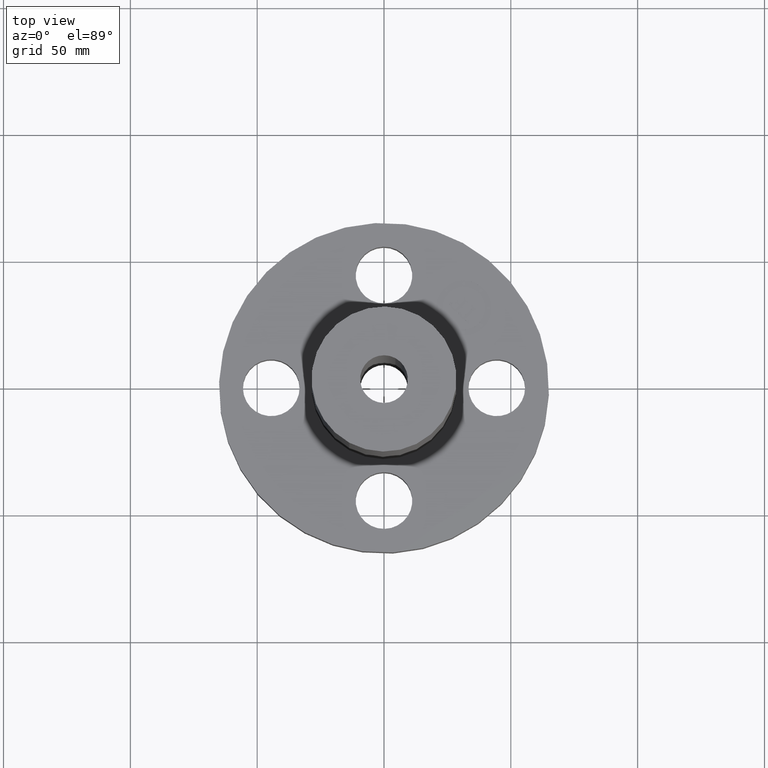
[diagram: clean part render]
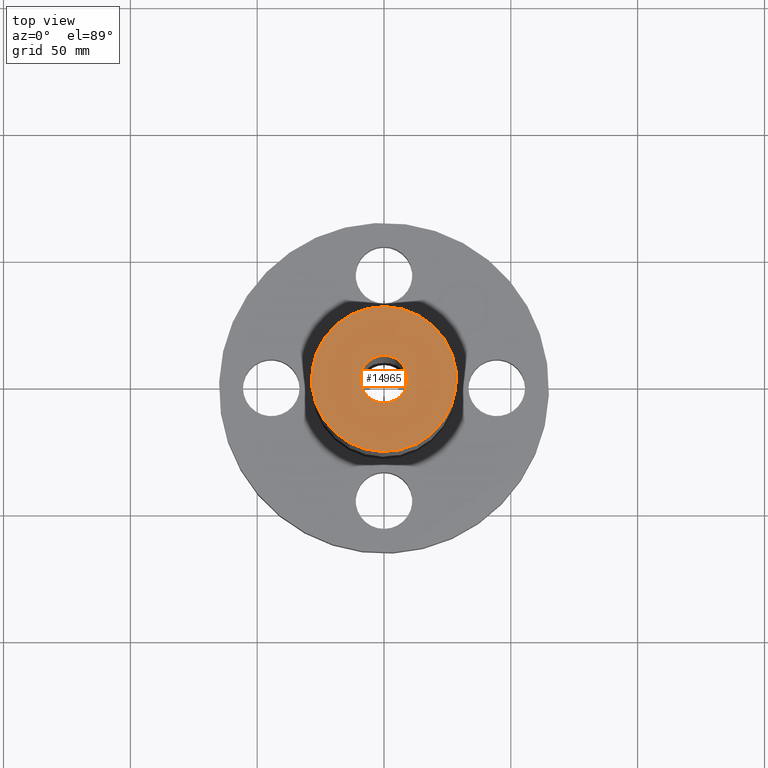
[diagram: same view with one face highlighted and labeled with its STEP entity id]
A machine part, top view. The second image highlights one B-rep face of the part: STEP entity #14965.
In plain terms, the highlighted planar face has unit normal (0, 0, -1).
Its self-contained STEP definition (entity closure, byte-faithful):
#4161=AXIS2_PLACEMENT_3D('Circle Axis2P3D',#4159,#4160,$) ;
#4180=AXIS2_PLACEMENT_3D('Circle Axis2P3D',#4178,#4179,$) ;
#14941=AXIS2_PLACEMENT_3D('Plane Axis2P3D',#14938,#14939,#14940) ;
#14949=AXIS2_PLACEMENT_3D('Circle Axis2P3D',#14947,#14948,$) ;
#14958=AXIS2_PLACEMENT_3D('Circle Axis2P3D',#14956,#14957,$) ;
#4156=CARTESIAN_POINT('Vertex',(0.539353730932,0.987280382131,8.75000000004)) ;
#4159=CARTESIAN_POINT('Axis2P3D Location',(0.,0.,8.75000000003)) ;
#4163=CARTESIAN_POINT('Vertex',(-0.539353730932,-0.987280382131,8.75000000004)) ;
#4178=CARTESIAN_POINT('Axis2P3D Location',(0.,0.,8.75000000003)) ;
#14938=CARTESIAN_POINT('Axis2P3D Location',(0.,1.125,8.75000000003)) ;
#14947=CARTESIAN_POINT('Axis2P3D Location',(0.,0.,8.75000000003)) ;
#14951=CARTESIAN_POINT('Vertex',(-0.177387449284,-0.324705547901,8.75000000004)) ;
#14953=CARTESIAN_POINT('Vertex',(0.177387449284,0.324705547901,8.75000000004)) ;
#14956=CARTESIAN_POINT('Axis2P3D Location',(0.,0.,8.75000000003)) ;
#4160=DIRECTION('Axis2P3D Direction',(0.,0.,-0.0393700787402)) ;
#4179=DIRECTION('Axis2P3D Direction',(0.,0.,-0.0393700787402)) ;
#14939=DIRECTION('Axis2P3D Direction',(0.,0.,-0.0393700787402)) ;
#14940=DIRECTION('Axis2P3D XDirection',(0.0393700787402,0.,0.)) ;
#14948=DIRECTION('Axis2P3D Direction',(0.,0.,-0.0393700787402)) ;
#14957=DIRECTION('Axis2P3D Direction',(0.,0.,-0.0393700787402)) ;
#14944=ORIENTED_EDGE('',*,*,#4165,.F.) ;
#14945=ORIENTED_EDGE('',*,*,#4182,.F.) ;
#14962=ORIENTED_EDGE('',*,*,#14955,.T.) ;
#14963=ORIENTED_EDGE('',*,*,#14960,.T.) ;
#14964=FACE_BOUND('',#14961,.T.) ;
#14965=ADVANCED_FACE('PartBody',(#14946,#14964),#14942,.F.) ;
#4162=CIRCLE('generated circle',#4161,1.125) ;
#4181=CIRCLE('generated circle',#4180,1.125) ;
#14950=CIRCLE('generated circle',#14949,0.370000000001) ;
#14959=CIRCLE('generated circle',#14958,0.370000000001) ;
#4165=EDGE_CURVE('',#4157,#4164,#4162,.T.) ;
#4182=EDGE_CURVE('',#4164,#4157,#4181,.T.) ;
#14955=EDGE_CURVE('',#14952,#14954,#14950,.T.) ;
#14960=EDGE_CURVE('',#14954,#14952,#14959,.T.) ;
#14943=EDGE_LOOP('',(#14944,#14945)) ;
#14961=EDGE_LOOP('',(#14962,#14963)) ;
#14946=FACE_OUTER_BOUND('',#14943,.T.) ;
#14942=PLANE('',#14941) ;
#4157=VERTEX_POINT('',#4156) ;
#4164=VERTEX_POINT('',#4163) ;
#14952=VERTEX_POINT('',#14951) ;
#14954=VERTEX_POINT('',#14953) ;